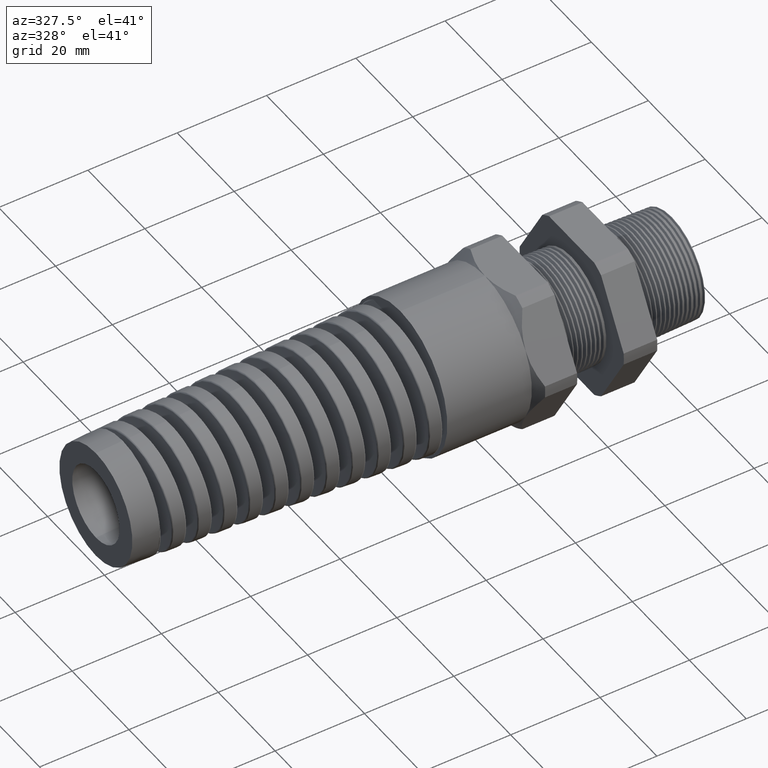
[diagram: clean part render]
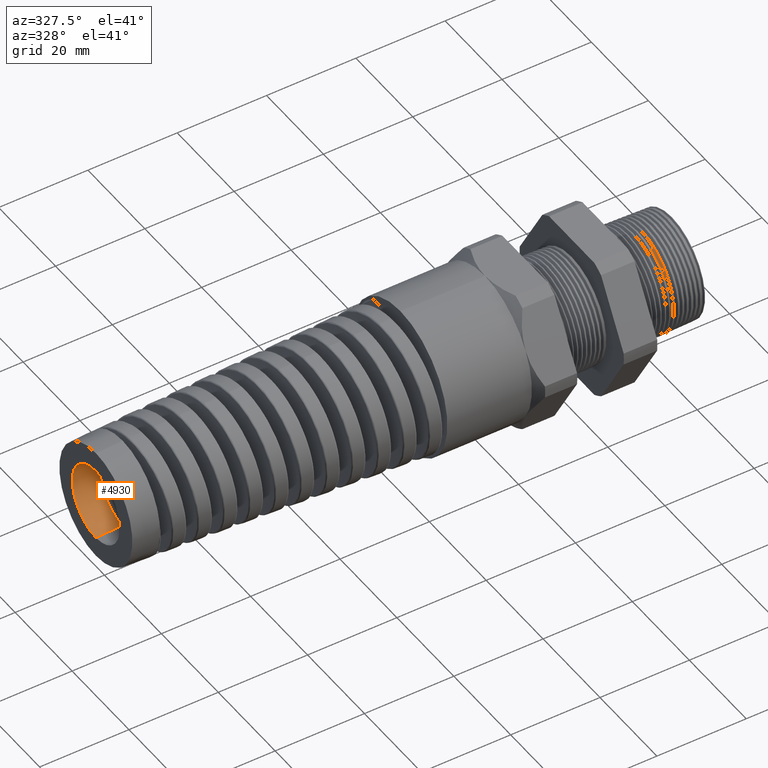
[diagram: same view with one face highlighted and labeled with its STEP entity id]
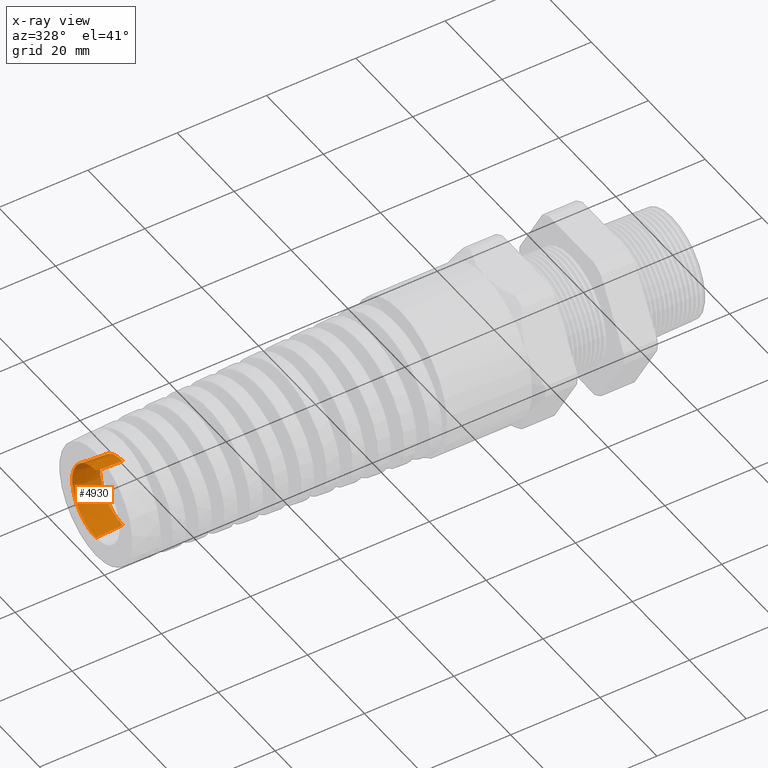
[diagram: x-ray of the same camera — body ghosted, the highlighted face saturated]
A machine part, auxiliary view. The second image highlights one B-rep face of the part: STEP entity #4930.
The next image is the same camera in x-ray: the body ghosted, the highlighted face saturated — about 0% of this face is hidden behind the body in this view.
In plain terms, the highlighted conical surface has half-angle 3 deg.
Its self-contained STEP definition (entity closure, byte-faithful):
#4928 = EDGE_CURVE ( 'NONE', #7279, #7484, #9897, .T. ) ;
#4930 = ADVANCED_FACE ( 'NONE', ( #9892 ), #9891, .F. ) ;
#4931 = EDGE_LOOP ( 'NONE', ( #4932, #4933, #4934, #4936, #4937 ) ) ;
#4932 = ORIENTED_EDGE ( 'NONE', *, *, #7273, .F. ) ;
#4933 = ORIENTED_EDGE ( 'NONE', *, *, #6669, .T. ) ;
#4934 = ORIENTED_EDGE ( 'NONE', *, *, #4935, .F. ) ;
#4935 = EDGE_CURVE ( 'NONE', #7358, #6728, #9890, .T. ) ;
#4936 = ORIENTED_EDGE ( 'NONE', *, *, #7281, .T. ) ;
#4937 = ORIENTED_EDGE ( 'NONE', *, *, #4928, .T. ) ;
#6669 = EDGE_CURVE ( 'NONE', #6685, #6728, #17026, .T. ) ;
#6685 = VERTEX_POINT ( 'NONE', #17155 ) ;
#6728 = VERTEX_POINT ( 'NONE', #17534 ) ;
#7273 = EDGE_CURVE ( 'NONE', #6685, #7484, #19548, .T. ) ;
#7279 = VERTEX_POINT ( 'NONE', #19533 ) ;
#7281 = EDGE_CURVE ( 'NONE', #7358, #7279, #19532, .T. ) ;
#7358 = VERTEX_POINT ( 'NONE', #19767 ) ;
#7484 = VERTEX_POINT ( 'NONE', #20144 ) ;
#9882 = DIRECTION ( 'NONE',  ( 0.0000000000000000000, 0.0000000000000000000, 1.000000000000000000 ) ) ;
#9883 = DIRECTION ( 'NONE',  ( -1.000000000000000000, 0.0000000000000000000, 0.0000000000000000000 ) ) ;
#9884 = CARTESIAN_POINT ( 'NONE',  ( -4.564000000000000900, 0.0000000000000000000, 0.0000000000000000000 ) ) ;
#9885 = AXIS2_PLACEMENT_3D ( 'NONE', #9884, #9883, #9882 ) ;
#9886 = DIRECTION ( 'NONE',  ( 0.0000000000000000000, 0.0000000000000000000, 1.000000000000000000 ) ) ;
#9887 = DIRECTION ( 'NONE',  ( -1.000000000000000000, 0.0000000000000000000, 0.0000000000000000000 ) ) ;
#9888 = CARTESIAN_POINT ( 'NONE',  ( -4.564000000000000900, 0.0000000000000000000, 0.0000000000000000000 ) ) ;
#9889 = AXIS2_PLACEMENT_3D ( 'NONE', #9888, #9887, #9886 ) ;
#9890 = CIRCLE ( 'NONE', #9885, 0.3149999999999997800 ) ;
#9891 = CONICAL_SURFACE ( 'NONE', #9889, 0.3149999999999997800, 0.05235987755983000100 ) ;
#9892 = FACE_OUTER_BOUND ( 'NONE', #4931, .T. ) ;
#9893 = DIRECTION ( 'NONE',  ( 0.0000000000000000000, 0.0000000000000000000, 1.000000000000000000 ) ) ;
#9894 = DIRECTION ( 'NONE',  ( -1.000000000000000000, 0.0000000000000000000, 0.0000000000000000000 ) ) ;
#9895 = CARTESIAN_POINT ( 'NONE',  ( -4.800220472440946300, 0.0000000000000000000, 0.0000000000000000000 ) ) ;
#9896 = AXIS2_PLACEMENT_3D ( 'NONE', #9895, #9894, #9893 ) ;
#9897 = CIRCLE ( 'NONE', #9896, 0.3273797903818205200 ) ;
#16947 = CARTESIAN_POINT ( 'NONE',  ( -4.564000000000000900, 0.0000000000000000000, 0.0000000000000000000 ) ) ;
#17023 = DIRECTION ( 'NONE',  ( 0.0000000000000000000, 0.0000000000000000000, -1.000000000000000000 ) ) ;
#17024 = DIRECTION ( 'NONE',  ( 1.000000000000000000, 0.0000000000000000000, 0.0000000000000000000 ) ) ;
#17025 = AXIS2_PLACEMENT_3D ( 'NONE', #16947, #17024, #17023 ) ;
#17026 = CIRCLE ( 'NONE', #17025, 0.3149999999999996700 ) ;
#17155 = CARTESIAN_POINT ( 'NONE',  ( -4.564000000000000900, 3.933441770640219200E-017, -0.3149999999999996700 ) ) ;
#17534 = CARTESIAN_POINT ( 'NONE',  ( -4.564000000000000900, 0.2424968070204524300, 0.2010480006985529100 ) ) ;
#19529 = DIRECTION ( 'NONE',  ( -0.9986295347545738300, 0.0000000000000000000, 0.05233595624294395300 ) ) ;
#19530 = VECTOR ( 'NONE', #19529, 39.37007874015748900 ) ;
#19531 = CARTESIAN_POINT ( 'NONE',  ( -4.564000000000000900, 0.0000000000000000000, 0.3149999999999997800 ) ) ;
#19532 = LINE ( 'NONE', #19531, #19530 ) ;
#19533 = CARTESIAN_POINT ( 'NONE',  ( -4.800220472440946300, 0.0000000000000000000, 0.3273797903818205800 ) ) ;
#19545 = DIRECTION ( 'NONE',  ( -0.9986295347545738300, 6.409306129323724800E-018, -0.05233595624294395300 ) ) ;
#19546 = VECTOR ( 'NONE', #19545, 39.37007874015748900 ) ;
#19547 = CARTESIAN_POINT ( 'NONE',  ( -4.564000000000000900, 3.857637417314159600E-017, -0.3149999999999997800 ) ) ;
#19548 = LINE ( 'NONE', #19547, #19546 ) ;
#19767 = CARTESIAN_POINT ( 'NONE',  ( -4.564000000000000900, 0.0000000000000000000, 0.3149999999999997800 ) ) ;
#20144 = CARTESIAN_POINT ( 'NONE',  ( -4.800220472440946300, 4.009246123966279400E-017, -0.3273797903818205800 ) ) ;